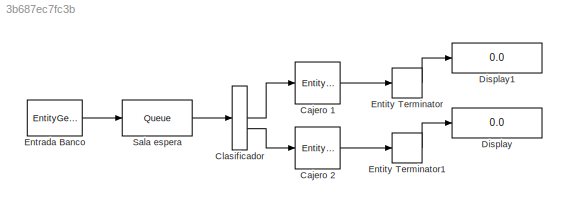
MODEL slx_3b687ec7fc3b
KIND model
CONFIG AbsTol = auto
CONFIG EnableMultiTasking = off
CONFIG FixedStep = auto
CONFIG MaxStep = auto
CONFIG MinStep = auto
CONFIG RelTol = 1e-3
CONFIG SampleTimeConstraint = Unconstrained
CONFIG SolverName = VariableStepAuto
CONFIG StartTime = 0.0
CONFIG StopTime = 10.0
BLOCK [EntityServer] Cajero 1
  Capacity = 1
  InputPortMap = u2
  InputPortMessageModes = m
  OutputPortMap = o9
  OutputPortMessageModes = m
BLOCK [EntityServer] Cajero 2
  Capacity = 1
  InputPortMap = u2
  InputPortMessageModes = m
  OutputPortMap = o9
  OutputPortMessageModes = m
BLOCK [EntityOutputSwitch] Clasificador
  InputPortMap = u1
  InputPortMessageModes = m
  OutputPortMap = o0,o1
  OutputPortMessageModes = m,m
  SwitchAttributeName = TransaccionTipo
  SwitchingCriterion = From attribute
BLOCK [Display] Display
  Decimation = 1
BLOCK [Display] Display1
  Decimation = 1
BLOCK [EntityTerminator] Entity Terminator
  InputPortMap = u0
  InputPortMessageModes = m
  NumberEntitiesArrived = on
  OutputPortMap = o0
BLOCK [EntityTerminator] Entity Terminator1
  InputPortMap = u0
  InputPortMessageModes = m
  NumberEntitiesArrived = on
  OutputPortMap = o0
BLOCK [EntityGenerator] Entrada Banco
  AttributeInitialValue = 0
  AttributeName = TransaccionTipo
  EntityType = Structured
  EntityTypeName = Clientes
  OutputPortMap = o3
  OutputPortMessageModes = m
BLOCK [Queue] Sala espera
  EntryAction = entity.TransaccionTipo = randi([1 2]);
  InputPortMap = u0
  InputPortMessageModes = m
  OutputPortMap = o5
  OutputPortMessageModes = m
LINE Cajero 1:1 -> Entity Terminator:1
LINE Cajero 2:1 -> Entity Terminator1:1
LINE Clasificador:1 -> Cajero 1:1
LINE Clasificador:2 -> Cajero 2:1
LINE Entity Terminator1:1 -> Display:1
LINE Entity Terminator:1 -> Display1:1
LINE Entrada Banco:1 -> Sala espera:1
LINE Sala espera:1 -> Clasificador:1
